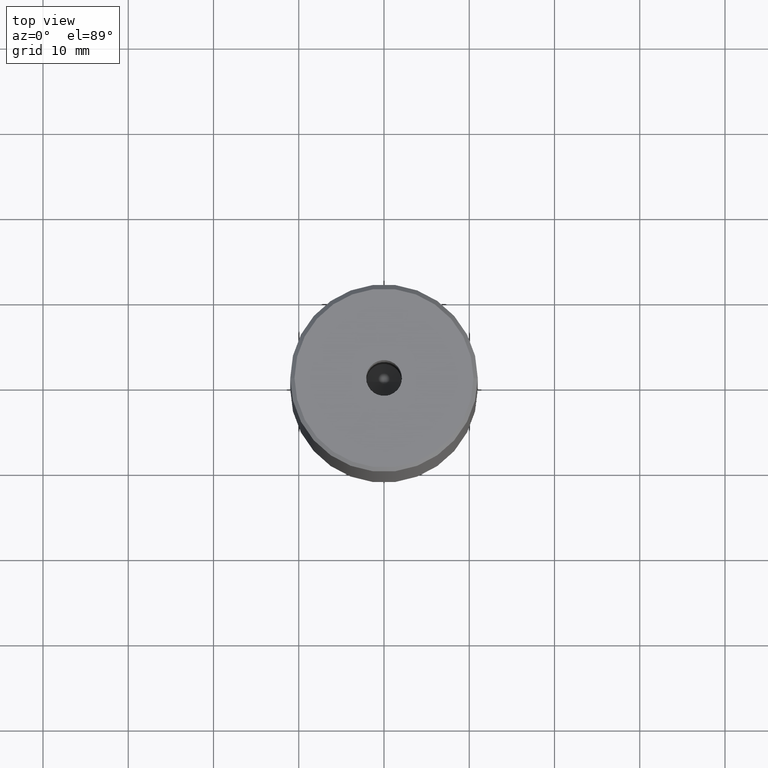
[diagram: clean part render]
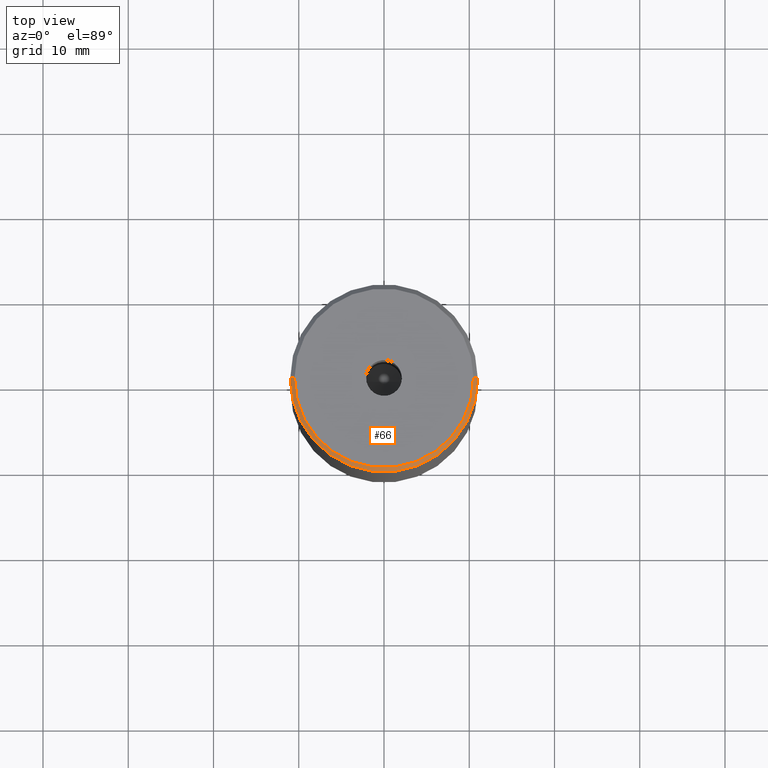
[diagram: same view with one face highlighted and labeled with its STEP entity id]
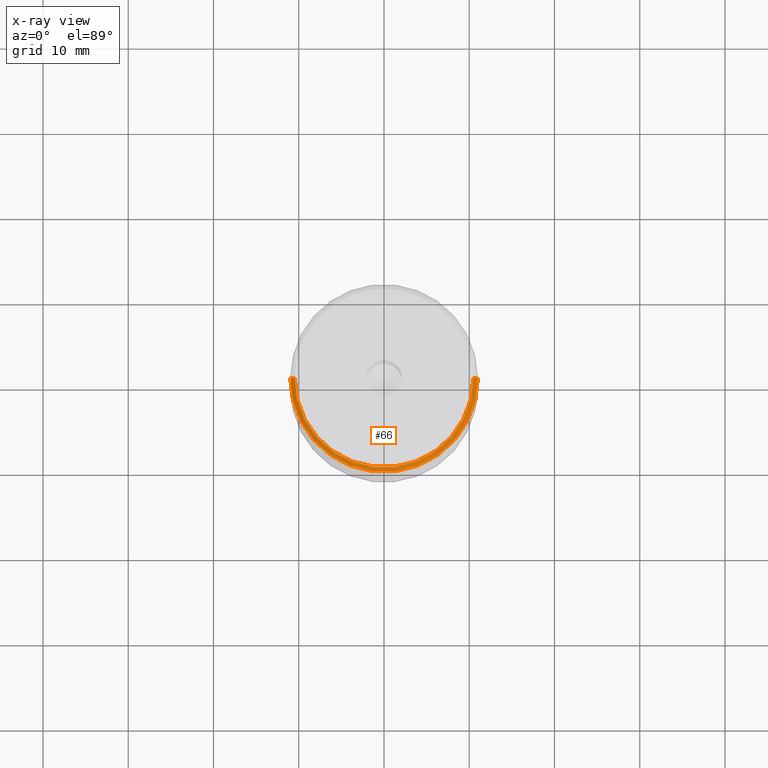
[diagram: x-ray of the same camera — body ghosted, the highlighted face saturated]
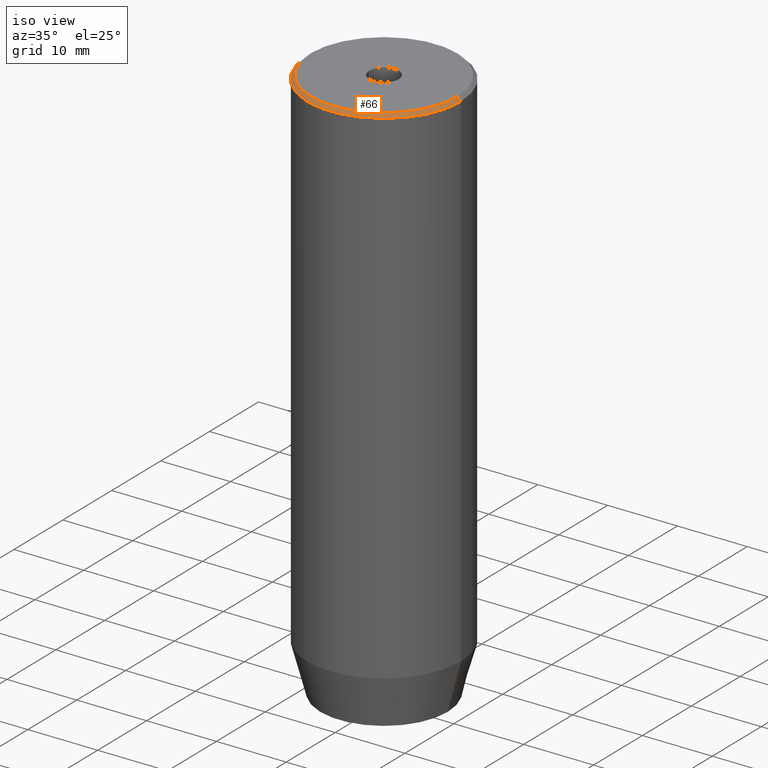
[diagram: same view with one face highlighted and labeled with its STEP entity id]
A machine part, top view. The second image highlights one B-rep face of the part: STEP entity #66.
The next image is the same camera in x-ray: the body ghosted, the highlighted face saturated — about 0% of this face is hidden behind the body in this view.
A second angle (iso view) of the same face is appended — the face is thin or edge-on in the first view.
In plain terms, the highlighted conical surface has half-angle 45 deg.
Its self-contained STEP definition (entity closure, byte-faithful):
#2 = CARTESIAN_POINT ( 'NONE',  ( -10.50000000000000178, 0.000000000000000000, 0.000000000000000000 ) ) ;
#29 = VERTEX_POINT ( 'NONE', #75 ) ;
#34 = CARTESIAN_POINT ( 'NONE',  ( 0.000000000000000000, 0.000000000000000000, 0.000000000000000000 ) ) ;
#36 = CARTESIAN_POINT ( 'NONE',  ( 0.000000000000000000, 0.000000000000000000, -0.4999999999999935052 ) ) ;
#47 = DIRECTION ( 'NONE',  ( -0.7071067811865500152, 0.000000000000000000, -0.7071067811865451302 ) ) ;
#64 = ORIENTED_EDGE ( 'NONE', *, *, #79, .F. ) ;
#66 = ADVANCED_FACE ( 'NONE', ( #494 ), #206, .T. ) ;
#75 = CARTESIAN_POINT ( 'NONE',  ( -11.00000000000000000, 1.347111479062088405E-15, -0.4999999999999935052 ) ) ;
#79 = EDGE_CURVE ( 'NONE', #521, #411, #322, .T. ) ;
#84 = VECTOR ( 'NONE', #47, 1000.000000000000114 ) ;
#103 = CARTESIAN_POINT ( 'NONE',  ( 10.50000000000000178, 1.285879139104721028E-15, 0.000000000000000000 ) ) ;
#112 = CARTESIAN_POINT ( 'NONE',  ( 11.00000000000000000, 0.000000000000000000, -0.4999999999999935052 ) ) ;
#149 = VECTOR ( 'NONE', #553, 1000.000000000000114 ) ;
#152 = VERTEX_POINT ( 'NONE', #228 ) ;
#159 = ORIENTED_EDGE ( 'NONE', *, *, #354, .T. ) ;
#183 = CIRCLE ( 'NONE', #582, 10.50000000000000178 ) ;
#206 = CONICAL_SURFACE ( 'NONE', #306, 10.50000000000000178, 0.7853981633974517207 ) ;
#210 = DIRECTION ( 'NONE',  ( -0.000000000000000000, -0.000000000000000000, 1.000000000000000000 ) ) ;
#213 = EDGE_CURVE ( 'NONE', #411, #29, #341, .T. ) ;
#214 = CARTESIAN_POINT ( 'NONE',  ( 10.50000000000000178, 1.316495309083404815E-15, 0.000000000000000000 ) ) ;
#228 = CARTESIAN_POINT ( 'NONE',  ( -10.50000000000000178, 0.000000000000000000, 0.000000000000000000 ) ) ;
#261 = DIRECTION ( 'NONE',  ( -1.000000000000000000, 0.000000000000000000, 0.000000000000000000 ) ) ;
#282 = EDGE_LOOP ( 'NONE', ( #64, #499, #159, #394 ) ) ;
#305 = DIRECTION ( 'NONE',  ( 0.000000000000000000, 0.000000000000000000, -1.000000000000000000 ) ) ;
#306 = AXIS2_PLACEMENT_3D ( 'NONE', #392, #305, #261 ) ;
#322 = LINE ( 'NONE', #103, #149 ) ;
#341 = CIRCLE ( 'NONE', #370, 11.00000000000000000 ) ;
#354 = EDGE_CURVE ( 'NONE', #152, #29, #359, .T. ) ;
#359 = LINE ( 'NONE', #2, #84 ) ;
#370 = AXIS2_PLACEMENT_3D ( 'NONE', #36, #395, #580 ) ;
#392 = CARTESIAN_POINT ( 'NONE',  ( 0.000000000000000000, 0.000000000000000000, 0.000000000000000000 ) ) ;
#393 = DIRECTION ( 'NONE',  ( 1.000000000000000000, 0.000000000000000000, 0.000000000000000000 ) ) ;
#394 = ORIENTED_EDGE ( 'NONE', *, *, #213, .F. ) ;
#395 = DIRECTION ( 'NONE',  ( 0.000000000000000000, 0.000000000000000000, -1.000000000000000000 ) ) ;
#411 = VERTEX_POINT ( 'NONE', #112 ) ;
#494 = FACE_OUTER_BOUND ( 'NONE', #282, .T. ) ;
#499 = ORIENTED_EDGE ( 'NONE', *, *, #508, .F. ) ;
#508 = EDGE_CURVE ( 'NONE', #152, #521, #183, .T. ) ;
#521 = VERTEX_POINT ( 'NONE', #214 ) ;
#553 = DIRECTION ( 'NONE',  ( 0.7071067811865500152, 8.659560562354963673E-17, -0.7071067811865451302 ) ) ;
#580 = DIRECTION ( 'NONE',  ( 1.000000000000000000, 0.000000000000000000, 0.000000000000000000 ) ) ;
#582 = AXIS2_PLACEMENT_3D ( 'NONE', #34, #210, #393 ) ;